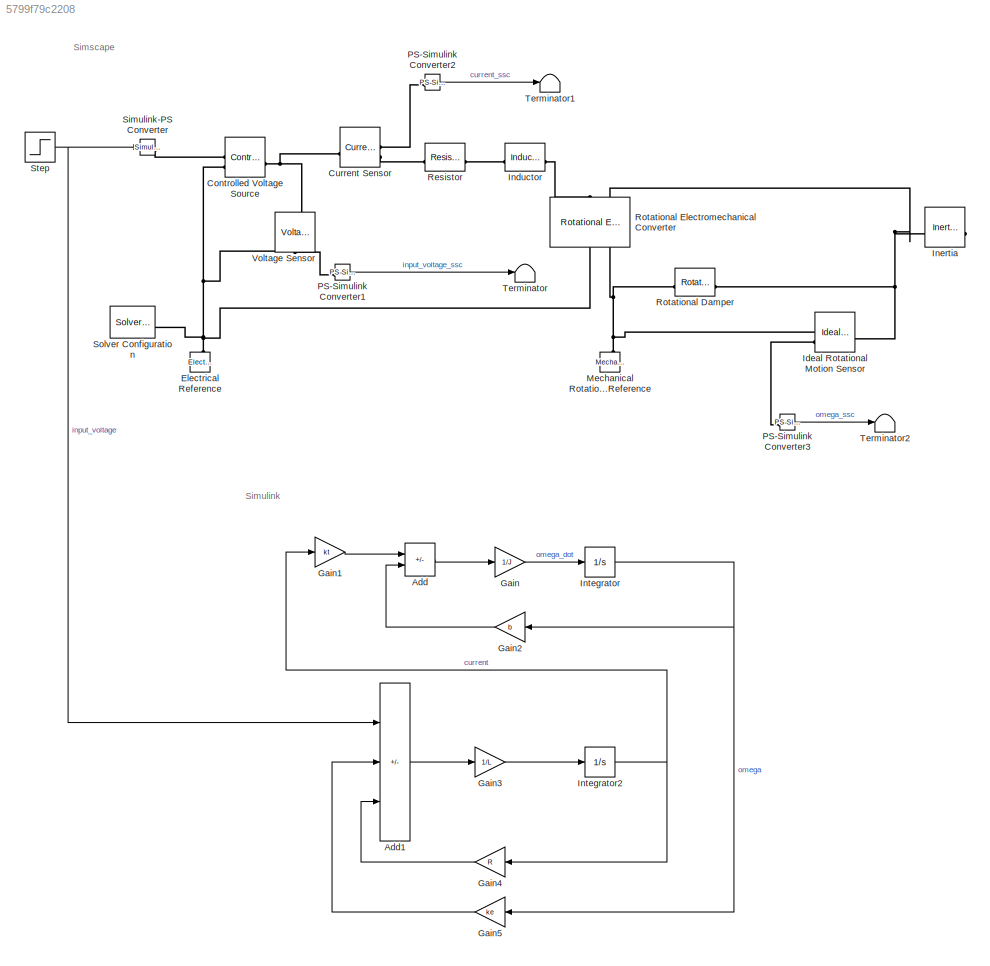
MODEL slx_5799f79c2208
KIND model
CONFIG AbsTol = 1e-3
CONFIG EnableMultiTasking = off
CONFIG FixedStep = auto
CONFIG MaxStep = auto
CONFIG MinStep = auto
CONFIG RelTol = 1e-3
CONFIG SampleTimeConstraint = Unconstrained
CONFIG SolverName = VariableStepAuto
CONFIG StartTime = 0.0
CONFIG StopTime = 2.5
BLOCK [Sum] Add
  IconShape = rectangular
  Inputs = +-
BLOCK [Sum] Add1
  IconShape = rectangular
  Inputs = +--
BLOCK [Reference] Controlled Voltage Source  REF=fl_lib/Electrical/Electrical Sources/Controlled Voltage
Source
  SourceBlock = fl_lib/Electrical/Electrical Sources/Controlled Voltage\nSource
  SourceType = Controlled Voltage\nSource
BLOCK [Reference] Current Sensor  REF=fl_lib/Electrical/Electrical Sensors/Current Sensor
  SourceBlock = fl_lib/Electrical/Electrical Sensors/Current Sensor
  SourceType = Current Sensor
BLOCK [Reference] Electrical Reference  REF=fl_lib/Electrical/Electrical Elements/Electrical Reference
  NameLocation = right
  SourceBlock = fl_lib/Electrical/Electrical Elements/Electrical Reference
  SourceType = Electrical Reference
BLOCK [Gain] Gain
  Gain = 1/J
BLOCK [Gain] Gain1
  Gain = kt
BLOCK [Gain] Gain2
  Gain = b
BLOCK [Gain] Gain3
  Gain = 1/L
BLOCK [Gain] Gain4
  Gain = R
BLOCK [Gain] Gain5
  Gain = ke
BLOCK [Reference] Ideal Rotational Motion Sensor  REF=fl_lib/Mechanical/Mechanical Sensors/Ideal Rotational
Motion Sensor
  SourceBlock = fl_lib/Mechanical/Mechanical Sensors/Ideal Rotational\nMotion Sensor
  SourceType = Ideal Rotational\nMotion Sensor
BLOCK [Reference] Inductor  REF=fl_lib/Electrical/Electrical Elements/Inductor
  SourceBlock = fl_lib/Electrical/Electrical Elements/Inductor
  SourceType = Inductor
BLOCK [Reference] Inertia  REF=fl_lib/Mechanical/Rotational Elements/Inertia
  NameLocation = top
  SourceBlock = fl_lib/Mechanical/Rotational Elements/Inertia
  SourceType = Inertia
BLOCK [Integrator] Integrator
BLOCK [Integrator] Integrator2
BLOCK [Reference] Mechanical Rotational Reference  REF=fl_lib/Mechanical/Rotational Elements/Mechanical
Rotational Reference
  NameLocation = right
  SourceBlock = fl_lib/Mechanical/Rotational Elements/Mechanical\nRotational Reference
  SourceType = Mechanical\nRotational Reference
BLOCK [Reference] PS-Simulink Converter1  REF=nesl_utility/PS-Simulink
Converter
  SourceBlock = nesl_utility/PS-Simulink\nConverter
  SourceType = PS-Simulink\nConverter
BLOCK [Reference] PS-Simulink Converter2  REF=nesl_utility/PS-Simulink
Converter
  SourceBlock = nesl_utility/PS-Simulink\nConverter
  SourceType = PS-Simulink\nConverter
BLOCK [Reference] PS-Simulink Converter3  REF=nesl_utility/PS-Simulink
Converter
  SourceBlock = nesl_utility/PS-Simulink\nConverter
  SourceType = PS-Simulink\nConverter
BLOCK [Reference] Resistor  REF=fl_lib/Electrical/Electrical Elements/Resistor
  SourceBlock = fl_lib/Electrical/Electrical Elements/Resistor
  SourceType = Resistor
BLOCK [Reference] Rotational Damper  REF=fl_lib/Mechanical/Rotational Elements/Rotational Damper
  SourceBlock = fl_lib/Mechanical/Rotational Elements/Rotational Damper
  SourceType = Rotational Damper
BLOCK [Reference] Rotational Electromechanical Converter  REF=fl_lib/Electrical/Electrical Elements/Rotational
Electromechanical
Converter
  NameLocation = right
  SourceBlock = fl_lib/Electrical/Electrical Elements/Rotational\nElectromechanical\nConverter
  SourceType = Rotational\nElectromechanical\nConverter
BLOCK [Reference] Simulink-PS Converter  REF=nesl_utility/Simulink-PS
Converter
  SourceBlock = nesl_utility/Simulink-PS\nConverter
  SourceType = Simulink-PS\nConverter
BLOCK [Reference] Solver Configuration  REF=nesl_utility/Solver
Configuration
  SourceBlock = nesl_utility/Solver\nConfiguration
  SourceType = Solver\nConfiguration
BLOCK [Step] Step
  After = 12
  SampleTime = 0
BLOCK [Terminator] Terminator
BLOCK [Terminator] Terminator1
BLOCK [Terminator] Terminator2
BLOCK [Reference] Voltage Sensor  REF=fl_lib/Electrical/Electrical Sensors/Voltage Sensor
  NameLocation = right
  SourceBlock = fl_lib/Electrical/Electrical Sensors/Voltage Sensor
  SourceType = Voltage Sensor
ANNOTATION (root): Simscape
ANNOTATION (root): Simulink
LINE Add1:1 -> Gain3:1
LINE Add:1 -> Gain:1
LINE Gain1:1 -> Add:1
LINE Gain2:1 -> Add:2
LINE Gain3:1 -> Integrator2:1
LINE Gain4:1 -> Add1:3
LINE Gain5:1 -> Add1:2
LINE Gain:1 -> Integrator:1
NET Integrator2:1 -> Gain1:1, Gain4:1
NET Integrator:1 -> Gain2:1, Gain5:1
LINE PS-Simulink Converter1:1 -> Terminator:1
LINE PS-Simulink Converter2:1 -> Terminator1:1
LINE PS-Simulink Converter3:1 -> Terminator2:1
NET Step:1 -> Add1:1, Simulink-PS Converter:1
PNET net1: Controlled Voltage Source:LConn1 -- Current Sensor:LConn1 -- Voltage Sensor:LConn1
PLINE Controlled Voltage Source:RConn1 -- Simulink-PS Converter:RConn1
PNET net2: Controlled Voltage Source:RConn2 -- Electrical Reference:LConn1 -- Rotational Electromechanical Converter:RConn1 -- Solver Configuration:RConn1 -- Voltage Sensor:RConn2
PLINE Current Sensor:RConn1 -- PS-Simulink Converter2:LConn1
PLINE Current Sensor:RConn2 -- Resistor:LConn1
PNET net3: Ideal Rotational Motion Sensor:LConn1 -- Inertia:LConn1 -- Rotational Damper:RConn1 -- Rotational Electromechanical Converter:LConn2
PNET net4: Ideal Rotational Motion Sensor:RConn1 -- Mechanical Rotational Reference:LConn1 -- Rotational Damper:LConn1 -- Rotational Electromechanical Converter:RConn2
PLINE Ideal Rotational Motion Sensor:RConn2 -- PS-Simulink Converter3:LConn1
PLINE Inductor:LConn1 -- Resistor:RConn1
PLINE Inductor:RConn1 -- Rotational Electromechanical Converter:LConn1
PLINE PS-Simulink Converter1:LConn1 -- Voltage Sensor:RConn1
note: NET lines group one-source signal fan-out (src -> all destinations, sorted); 1:1 wires keep LINE; PNET lines group multi-terminal physical nets as a canonical sorted terminal list (undirected conserving connections); 2-terminal nets keep the pairwise PLINE form
